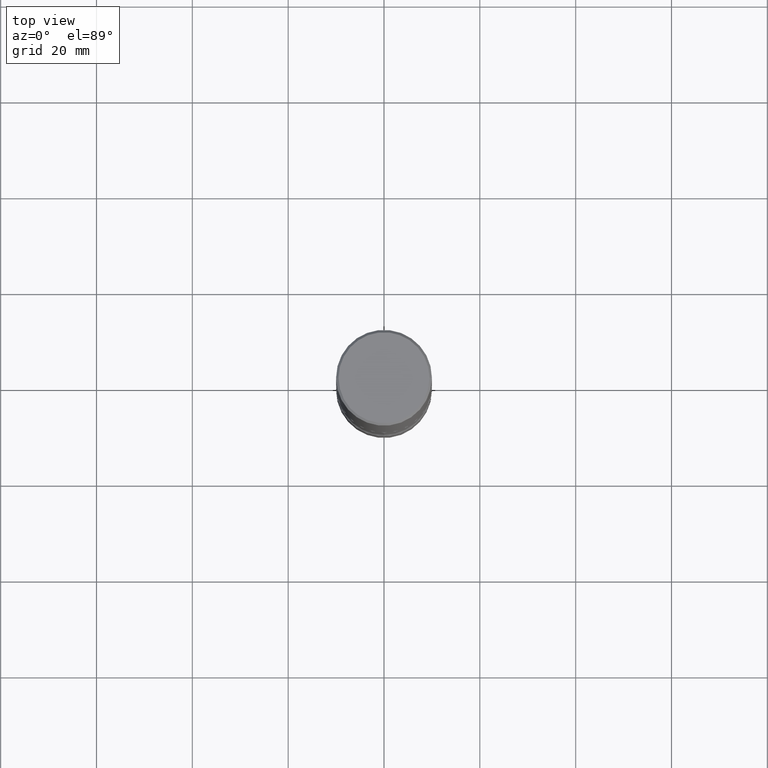
[diagram: clean part render]
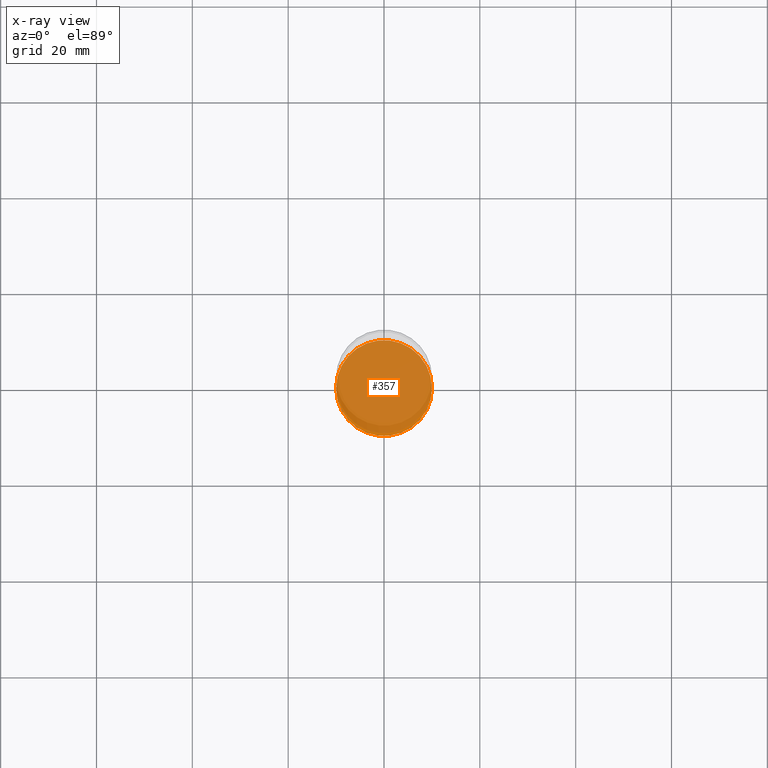
[diagram: x-ray — body ghosted, one internal face saturated and labeled with its STEP entity id]
A machine part, top view, then the same camera in x-ray: the body is ghosted and one INTERNAL B-rep face — a face not visible from any outside direction — is saturated and labeled: STEP entity #357.
In plain terms, the highlighted planar face has unit normal (0, -0, -1).
Its self-contained STEP definition (entity closure, byte-faithful):
#20 = DIRECTION ( 'NONE',  ( -2.445468806185136597E-29, 3.491481338843145583E-15, 1.000000000000000000 ) ) ;
#24 = CARTESIAN_POINT ( 'NONE',  ( 0.3937000000000001609, -1.993147037091997467E-14, -4.921200000000000685 ) ) ;
#54 = EDGE_CURVE ( 'NONE', #383, #520, #234, .T. ) ;
#60 = AXIS2_PLACEMENT_3D ( 'NONE', #155, #267, #300 ) ;
#104 = CARTESIAN_POINT ( 'NONE',  ( 1.203464108899829604E-28, -1.718227796471488830E-14, -4.921200000000000685 ) ) ;
#155 = CARTESIAN_POINT ( 'NONE',  ( 1.203464108899829604E-28, -1.718227796471488830E-14, -4.921200000000000685 ) ) ;
#176 = CIRCLE ( 'NONE', #488, 0.3937000000000001609 ) ;
#213 = DIRECTION ( 'NONE',  ( -2.445468806185136597E-29, 3.491481338843145583E-15, 1.000000000000000000 ) ) ;
#234 = CIRCLE ( 'NONE', #506, 0.3937000000000001609 ) ;
#267 = DIRECTION ( 'NONE',  ( 2.438088387897960049E-29, -3.491481338843145188E-15, -1.000000000000000000 ) ) ;
#279 = DIRECTION ( 'NONE',  ( 1.000000000000000000, -6.982962677686265922E-15, 0.000000000000000000 ) ) ;
#300 = DIRECTION ( 'NONE',  ( -1.000000000000000000, 6.982962677686265922E-15, -4.876176775795935793E-29 ) ) ;
#310 = FACE_OUTER_BOUND ( 'NONE', #377, .T. ) ;
#357 = ADVANCED_FACE ( 'NONE', ( #310 ), #546, .F. ) ;
#365 = EDGE_CURVE ( 'NONE', #520, #383, #176, .T. ) ;
#377 = EDGE_LOOP ( 'NONE', ( #447, #476 ) ) ;
#383 = VERTEX_POINT ( 'NONE', #427 ) ;
#427 = CARTESIAN_POINT ( 'NONE',  ( -0.3937000000000001609, -1.593823126167869208E-14, -4.921200000000000685 ) ) ;
#447 = ORIENTED_EDGE ( 'NONE', *, *, #365, .T. ) ;
#476 = ORIENTED_EDGE ( 'NONE', *, *, #54, .T. ) ;
#488 = AXIS2_PLACEMENT_3D ( 'NONE', #554, #213, #279 ) ;
#506 = AXIS2_PLACEMENT_3D ( 'NONE', #104, #20, #536 ) ;
#520 = VERTEX_POINT ( 'NONE', #24 ) ;
#536 = DIRECTION ( 'NONE',  ( 1.000000000000000000, -6.982962677686265922E-15, 0.000000000000000000 ) ) ;
#546 = PLANE ( 'NONE',  #60 ) ;
#554 = CARTESIAN_POINT ( 'NONE',  ( 1.203464108899829604E-28, -1.718227796471488830E-14, -4.921200000000000685 ) ) ;